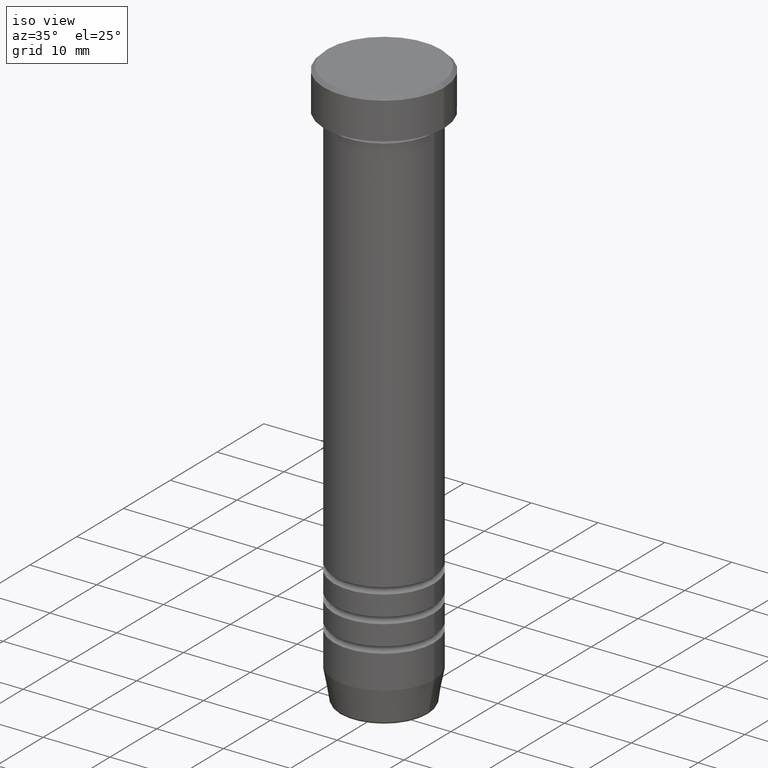
[diagram: clean part render]
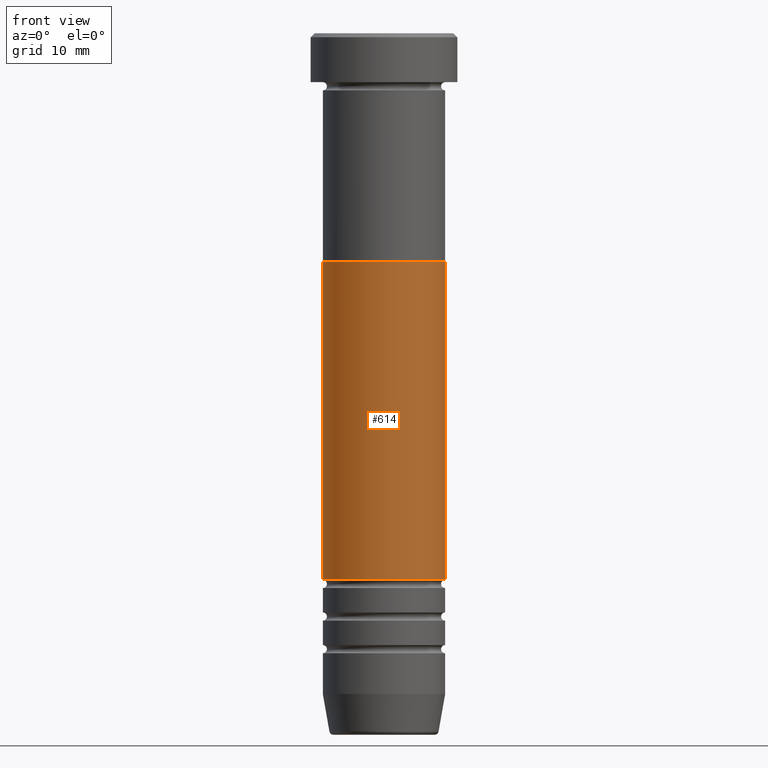
[diagram: tour spotlight — one face highlighted and labeled with its STEP entity id]
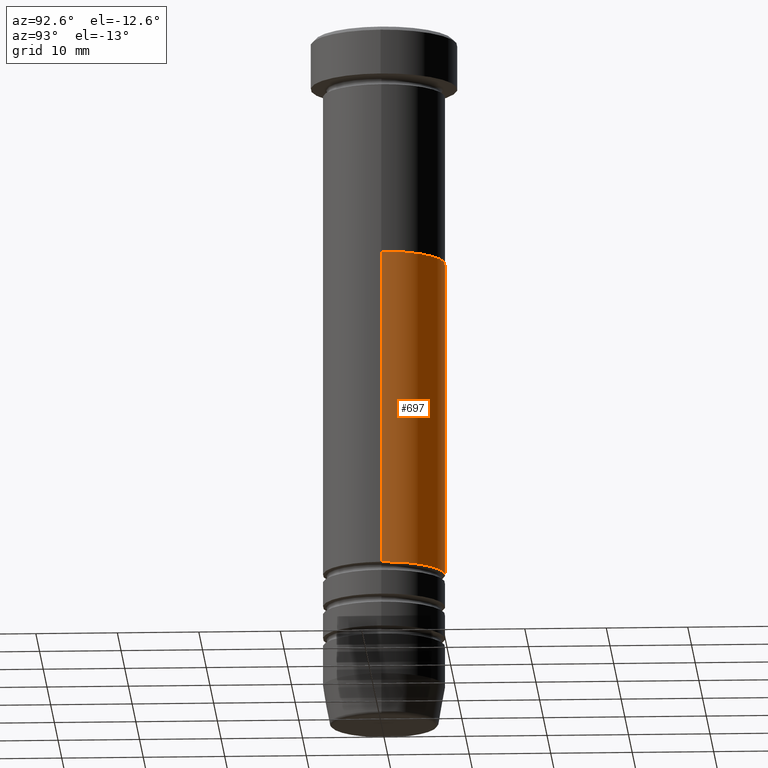
[diagram: tour spotlight — one face highlighted and labeled with its STEP entity id]
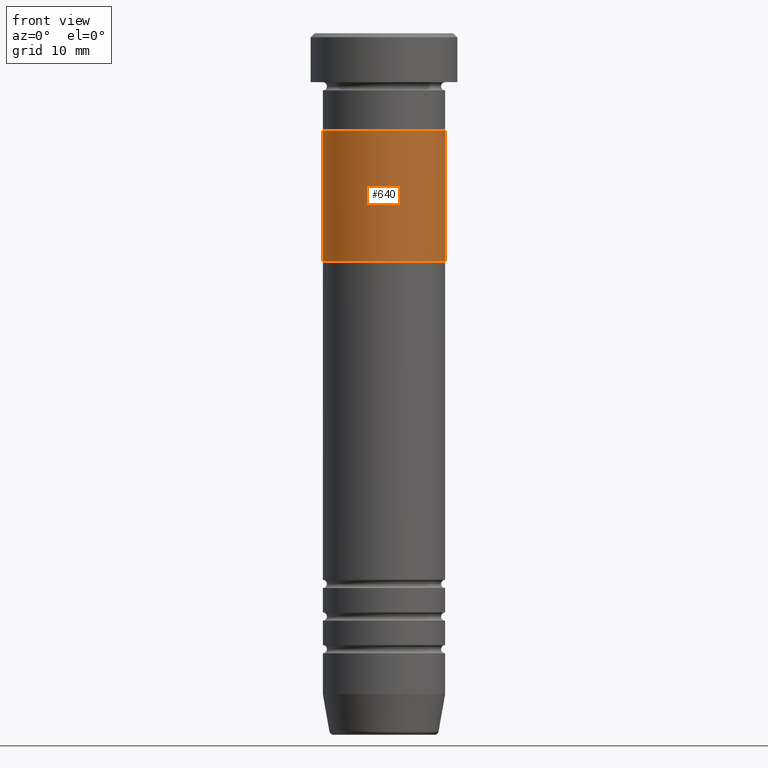
[diagram: tour spotlight — one face highlighted and labeled with its STEP entity id]
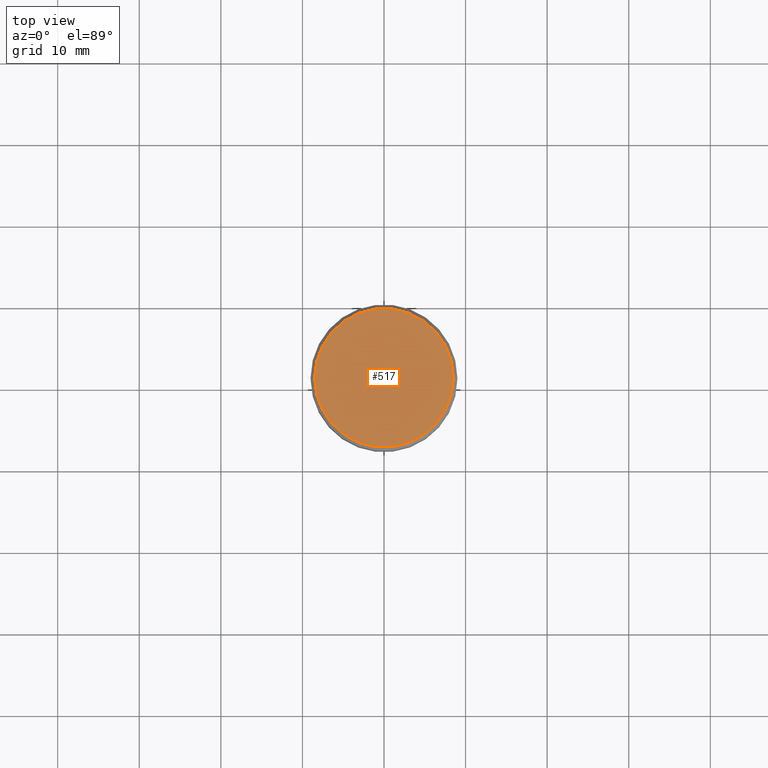
[diagram: tour spotlight — one face highlighted and labeled with its STEP entity id]
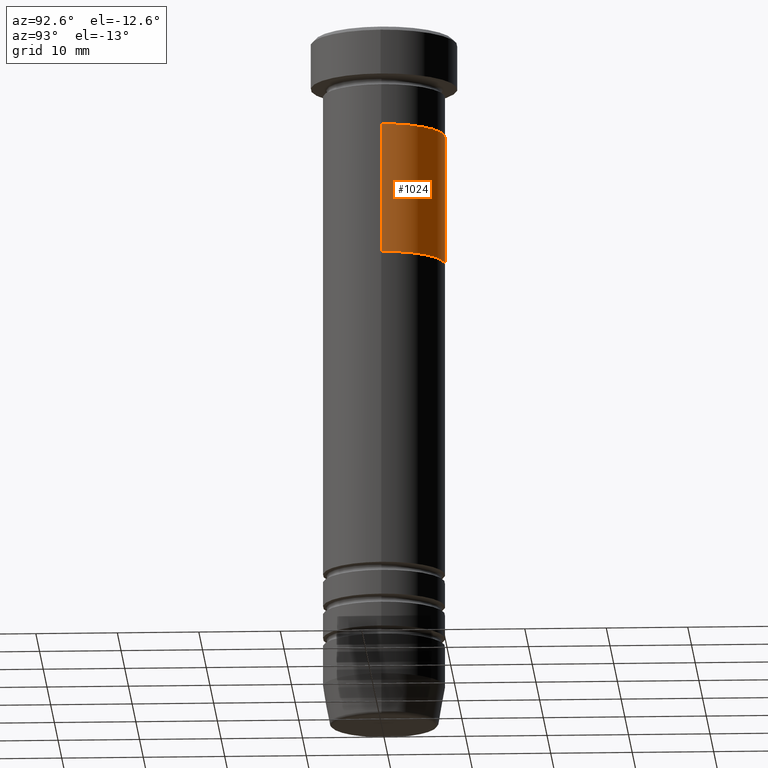
[diagram: tour spotlight — one face highlighted and labeled with its STEP entity id]
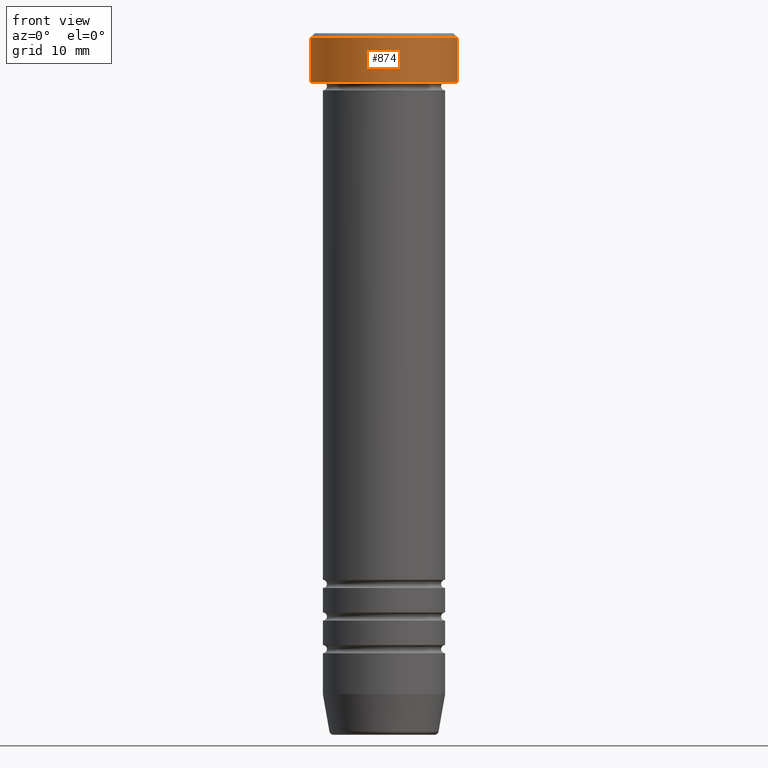
[diagram: tour spotlight — one face highlighted and labeled with its STEP entity id]
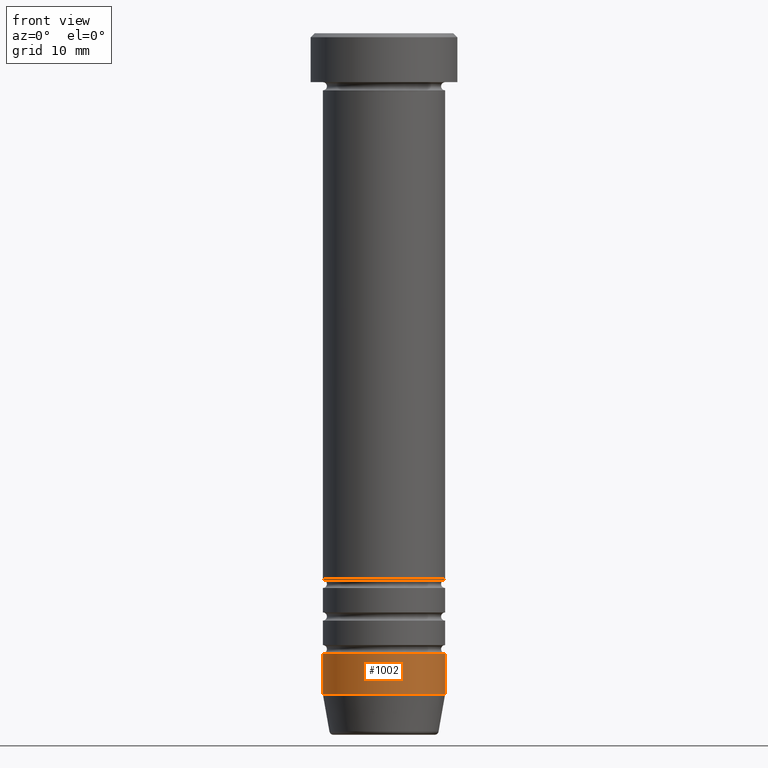
[diagram: tour spotlight — one face highlighted and labeled with its STEP entity id]
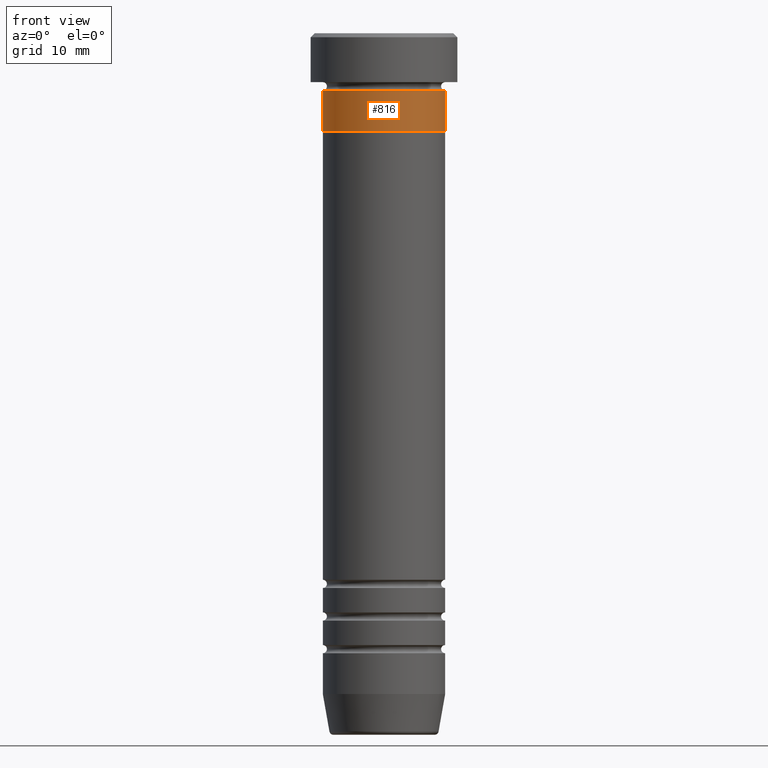
[diagram: tour spotlight — one face highlighted and labeled with its STEP entity id]
A machine part: a face-by-face anatomy tour. The part has 43 B-rep faces; the first image is the clean iso view, then the 8 largest visible faces are spotlighted one at a time (largest first), each with its STEP entity span.

Face 1 — front view, entity #614. In plain terms, the highlighted cylindrical surface (partial cylindrical patch) has radius 7.5 mm, axis along (-0, -0, 1).
Definition (entity closure, byte-faithful):
#41 = CARTESIAN_POINT ( 'NONE',  ( 7.500000000000000000, 0.000000000000000000, -28.00000000000000000 ) ) ;
#48 = CARTESIAN_POINT ( 'NONE',  ( -7.500000000000000888, 9.184850993605149917E-16, -28.00000000000000000 ) ) ;
#70 = LINE ( 'NONE', #526, #91 ) ;
#73 = DIRECTION ( 'NONE',  ( -0.000000000000000000, -0.000000000000000000, 1.000000000000000000 ) ) ;
#91 = VECTOR ( 'NONE', #1037, 1000.000000000000000 ) ;
#138 = DIRECTION ( 'NONE',  ( -0.000000000000000000, -0.000000000000000000, 1.000000000000000000 ) ) ;
#146 = CIRCLE ( 'NONE', #978, 7.499999999999991118 ) ;
#160 = FACE_OUTER_BOUND ( 'NONE', #989, .T. ) ;
#176 = DIRECTION ( 'NONE',  ( -0.000000000000000000, -0.000000000000000000, 1.000000000000000000 ) ) ;
#220 = CARTESIAN_POINT ( 'NONE',  ( 0.000000000000000000, 0.000000000000000000, -28.00000000000000000 ) ) ;
#292 = AXIS2_PLACEMENT_3D ( 'NONE', #220, #138, #566 ) ;
#299 = CARTESIAN_POINT ( 'NONE',  ( 7.499999999999995559, 0.000000000000000000, 0.000000000000000000 ) ) ;
#329 = CYLINDRICAL_SURFACE ( 'NONE', #1125, 7.499999999999995559 ) ;
#336 = ORIENTED_EDGE ( 'NONE', *, *, #543, .T. ) ;
#354 = VERTEX_POINT ( 'NONE', #48 ) ;
#394 = EDGE_CURVE ( 'NONE', #354, #852, #788, .T. ) ;
#432 = EDGE_CURVE ( 'NONE', #947, #852, #584, .T. ) ;
#514 = CARTESIAN_POINT ( 'NONE',  ( 0.000000000000000000, 0.000000000000000000, 0.000000000000000000 ) ) ;
#526 = CARTESIAN_POINT ( 'NONE',  ( -7.499999999999995559, 9.184850993605144000E-16, 0.000000000000000000 ) ) ;
#543 = EDGE_CURVE ( 'NONE', #915, #947, #146, .T. ) ;
#566 = DIRECTION ( 'NONE',  ( 1.000000000000000000, 0.000000000000000000, 0.000000000000000000 ) ) ;
#584 = LINE ( 'NONE', #299, #589 ) ;
#589 = VECTOR ( 'NONE', #1116, 1000.000000000000000 ) ;
#605 = CARTESIAN_POINT ( 'NONE',  ( 0.000000000000000000, 0.000000000000000000, -67.00000000000000000 ) ) ;
#614 = ADVANCED_FACE ( 'NONE', ( #160 ), #329, .T. ) ;
#629 = ORIENTED_EDGE ( 'NONE', *, *, #961, .F. ) ;
#786 = CARTESIAN_POINT ( 'NONE',  ( -7.499999999999991118, 9.184850993605142028E-16, -67.00000000000000000 ) ) ;
#788 = CIRCLE ( 'NONE', #292, 7.500000000000000000 ) ;
#800 = ORIENTED_EDGE ( 'NONE', *, *, #394, .F. ) ;
#852 = VERTEX_POINT ( 'NONE', #41 ) ;
#915 = VERTEX_POINT ( 'NONE', #786 ) ;
#947 = VERTEX_POINT ( 'NONE', #1124 ) ;
#961 = EDGE_CURVE ( 'NONE', #915, #354, #70, .T. ) ;
#978 = AXIS2_PLACEMENT_3D ( 'NONE', #605, #176, #1137 ) ;
#989 = EDGE_LOOP ( 'NONE', ( #629, #336, #1007, #800 ) ) ;
#1007 = ORIENTED_EDGE ( 'NONE', *, *, #432, .T. ) ;
#1035 = DIRECTION ( 'NONE',  ( 1.000000000000000000, 0.000000000000000000, 0.000000000000000000 ) ) ;
#1037 = DIRECTION ( 'NONE',  ( -0.000000000000000000, -0.000000000000000000, 1.000000000000000000 ) ) ;
#1116 = DIRECTION ( 'NONE',  ( -0.000000000000000000, -0.000000000000000000, 1.000000000000000000 ) ) ;
#1124 = CARTESIAN_POINT ( 'NONE',  ( 7.499999999999991118, 0.000000000000000000, -67.00000000000000000 ) ) ;
#1125 = AXIS2_PLACEMENT_3D ( 'NONE', #514, #73, #1035 ) ;
#1137 = DIRECTION ( 'NONE',  ( 1.000000000000000000, 0.000000000000000000, 0.000000000000000000 ) ) ;

Face 2 — auxiliary view, entity #697. In plain terms, the highlighted cylindrical surface (partial cylindrical patch) has radius 7.5 mm, axis along (-0, -0, 1).
Definition (entity closure, byte-faithful):
#41 = CARTESIAN_POINT ( 'NONE',  ( 7.500000000000000000, 0.000000000000000000, -28.00000000000000000 ) ) ;
#48 = CARTESIAN_POINT ( 'NONE',  ( -7.500000000000000888, 9.184850993605149917E-16, -28.00000000000000000 ) ) ;
#55 = CARTESIAN_POINT ( 'NONE',  ( 0.000000000000000000, 0.000000000000000000, -67.00000000000000000 ) ) ;
#70 = LINE ( 'NONE', #526, #91 ) ;
#91 = VECTOR ( 'NONE', #1037, 1000.000000000000000 ) ;
#113 = DIRECTION ( 'NONE',  ( -0.000000000000000000, -0.000000000000000000, 1.000000000000000000 ) ) ;
#199 = CYLINDRICAL_SURFACE ( 'NONE', #790, 7.499999999999995559 ) ;
#218 = DIRECTION ( 'NONE',  ( 1.000000000000000000, 0.000000000000000000, 0.000000000000000000 ) ) ;
#230 = DIRECTION ( 'NONE',  ( -0.000000000000000000, -0.000000000000000000, 1.000000000000000000 ) ) ;
#299 = CARTESIAN_POINT ( 'NONE',  ( 7.499999999999995559, 0.000000000000000000, 0.000000000000000000 ) ) ;
#354 = VERTEX_POINT ( 'NONE', #48 ) ;
#384 = AXIS2_PLACEMENT_3D ( 'NONE', #718, #986, #975 ) ;
#432 = EDGE_CURVE ( 'NONE', #947, #852, #584, .T. ) ;
#444 = FACE_OUTER_BOUND ( 'NONE', #1144, .T. ) ;
#502 = CIRCLE ( 'NONE', #384, 7.500000000000000000 ) ;
#526 = CARTESIAN_POINT ( 'NONE',  ( -7.499999999999995559, 9.184850993605144000E-16, 0.000000000000000000 ) ) ;
#555 = CARTESIAN_POINT ( 'NONE',  ( 0.000000000000000000, 0.000000000000000000, 0.000000000000000000 ) ) ;
#584 = LINE ( 'NONE', #299, #589 ) ;
#585 = ORIENTED_EDGE ( 'NONE', *, *, #432, .F. ) ;
#589 = VECTOR ( 'NONE', #1116, 1000.000000000000000 ) ;
#648 = EDGE_CURVE ( 'NONE', #852, #354, #502, .T. ) ;
#655 = ORIENTED_EDGE ( 'NONE', *, *, #839, .T. ) ;
#675 = ORIENTED_EDGE ( 'NONE', *, *, #648, .F. ) ;
#697 = ADVANCED_FACE ( 'NONE', ( #444 ), #199, .T. ) ;
#718 = CARTESIAN_POINT ( 'NONE',  ( 0.000000000000000000, 0.000000000000000000, -28.00000000000000000 ) ) ;
#773 = ORIENTED_EDGE ( 'NONE', *, *, #961, .T. ) ;
#786 = CARTESIAN_POINT ( 'NONE',  ( -7.499999999999991118, 9.184850993605142028E-16, -67.00000000000000000 ) ) ;
#790 = AXIS2_PLACEMENT_3D ( 'NONE', #555, #113, #999 ) ;
#839 = EDGE_CURVE ( 'NONE', #947, #915, #979, .T. ) ;
#852 = VERTEX_POINT ( 'NONE', #41 ) ;
#915 = VERTEX_POINT ( 'NONE', #786 ) ;
#947 = VERTEX_POINT ( 'NONE', #1124 ) ;
#961 = EDGE_CURVE ( 'NONE', #915, #354, #70, .T. ) ;
#975 = DIRECTION ( 'NONE',  ( 1.000000000000000000, 0.000000000000000000, 0.000000000000000000 ) ) ;
#979 = CIRCLE ( 'NONE', #1052, 7.499999999999991118 ) ;
#986 = DIRECTION ( 'NONE',  ( -0.000000000000000000, -0.000000000000000000, 1.000000000000000000 ) ) ;
#999 = DIRECTION ( 'NONE',  ( 1.000000000000000000, 0.000000000000000000, 0.000000000000000000 ) ) ;
#1037 = DIRECTION ( 'NONE',  ( -0.000000000000000000, -0.000000000000000000, 1.000000000000000000 ) ) ;
#1052 = AXIS2_PLACEMENT_3D ( 'NONE', #55, #230, #218 ) ;
#1116 = DIRECTION ( 'NONE',  ( -0.000000000000000000, -0.000000000000000000, 1.000000000000000000 ) ) ;
#1124 = CARTESIAN_POINT ( 'NONE',  ( 7.499999999999991118, 0.000000000000000000, -67.00000000000000000 ) ) ;
#1144 = EDGE_LOOP ( 'NONE', ( #655, #773, #675, #585 ) ) ;

Face 3 — front view, entity #640. In plain terms, the highlighted cylindrical surface (partial cylindrical patch) has radius 7.5 mm, axis along (-0, -0, 1).
Definition (entity closure, byte-faithful):
#4 = ORIENTED_EDGE ( 'NONE', *, *, #633, .F. ) ;
#17 = CARTESIAN_POINT ( 'NONE',  ( 0.000000000000000000, 0.000000000000000000, -28.00000000000000000 ) ) ;
#37 = DIRECTION ( 'NONE',  ( -0.000000000000000000, -0.000000000000000000, 1.000000000000000000 ) ) ;
#47 = LINE ( 'NONE', #234, #72 ) ;
#66 = EDGE_CURVE ( 'NONE', #684, #69, #695, .T. ) ;
#67 = CARTESIAN_POINT ( 'NONE',  ( -7.500000000000000000, 9.184850993605147944E-16, -12.00000000000000000 ) ) ;
#69 = VERTEX_POINT ( 'NONE', #67 ) ;
#72 = VECTOR ( 'NONE', #37, 1000.000000000000000 ) ;
#99 = DIRECTION ( 'NONE',  ( -0.000000000000000000, -0.000000000000000000, 1.000000000000000000 ) ) ;
#172 = ORIENTED_EDGE ( 'NONE', *, *, #1008, .T. ) ;
#177 = CARTESIAN_POINT ( 'NONE',  ( -7.500000000000000000, 9.184850993605147944E-16, -28.00000000000000000 ) ) ;
#193 = FACE_OUTER_BOUND ( 'NONE', #217, .T. ) ;
#217 = EDGE_LOOP ( 'NONE', ( #1120, #4, #251, #172 ) ) ;
#234 = CARTESIAN_POINT ( 'NONE',  ( 7.500000000000000000, 0.000000000000000000, -28.00000000000000000 ) ) ;
#251 = ORIENTED_EDGE ( 'NONE', *, *, #818, .T. ) ;
#263 = DIRECTION ( 'NONE',  ( -1.000000000000000000, 0.000000000000000000, 0.000000000000000000 ) ) ;
#283 = CARTESIAN_POINT ( 'NONE',  ( 0.000000000000000000, 0.000000000000000000, -12.00000000000000000 ) ) ;
#284 = DIRECTION ( 'NONE',  ( 1.000000000000000000, 0.000000000000000000, 0.000000000000000000 ) ) ;
#288 = VECTOR ( 'NONE', #524, 1000.000000000000000 ) ;
#428 = CARTESIAN_POINT ( 'NONE',  ( 0.000000000000000000, 0.000000000000000000, -28.00000000000000000 ) ) ;
#463 = DIRECTION ( 'NONE',  ( -1.000000000000000000, 0.000000000000000000, 0.000000000000000000 ) ) ;
#524 = DIRECTION ( 'NONE',  ( -0.000000000000000000, -0.000000000000000000, 1.000000000000000000 ) ) ;
#559 = CARTESIAN_POINT ( 'NONE',  ( 7.500000000000000000, 0.000000000000000000, -12.00000000000000000 ) ) ;
#577 = VERTEX_POINT ( 'NONE', #682 ) ;
#590 = AXIS2_PLACEMENT_3D ( 'NONE', #428, #722, #463 ) ;
#633 = EDGE_CURVE ( 'NONE', #577, #684, #922, .T. ) ;
#638 = CYLINDRICAL_SURFACE ( 'NONE', #995, 7.500000000000000000 ) ;
#640 = ADVANCED_FACE ( 'NONE', ( #193 ), #638, .T. ) ;
#662 = VERTEX_POINT ( 'NONE', #559 ) ;
#682 = CARTESIAN_POINT ( 'NONE',  ( 7.500000000000000000, 0.000000000000000000, -28.00000000000000000 ) ) ;
#684 = VERTEX_POINT ( 'NONE', #1147 ) ;
#695 = LINE ( 'NONE', #177, #288 ) ;
#722 = DIRECTION ( 'NONE',  ( 0.000000000000000000, 0.000000000000000000, -1.000000000000000000 ) ) ;
#809 = DIRECTION ( 'NONE',  ( 0.000000000000000000, 0.000000000000000000, -1.000000000000000000 ) ) ;
#818 = EDGE_CURVE ( 'NONE', #577, #662, #47, .T. ) ;
#922 = CIRCLE ( 'NONE', #590, 7.500000000000000000 ) ;
#944 = AXIS2_PLACEMENT_3D ( 'NONE', #283, #809, #263 ) ;
#995 = AXIS2_PLACEMENT_3D ( 'NONE', #17, #99, #284 ) ;
#1008 = EDGE_CURVE ( 'NONE', #662, #69, #1034, .T. ) ;
#1034 = CIRCLE ( 'NONE', #944, 7.500000000000000000 ) ;
#1120 = ORIENTED_EDGE ( 'NONE', *, *, #66, .F. ) ;
#1147 = CARTESIAN_POINT ( 'NONE',  ( -7.500000000000000000, 9.184850993605147944E-16, -28.00000000000000000 ) ) ;

Face 4 — top view, entity #517. In plain terms, the highlighted planar face has unit normal (0, -0, 1).
Definition (entity closure, byte-faithful):
#13 = CIRCLE ( 'NONE', #965, 8.500000000000000000 ) ;
#78 = DIRECTION ( 'NONE',  ( 1.000000000000000000, 0.000000000000000000, 0.000000000000000000 ) ) ;
#86 = DIRECTION ( 'NONE',  ( 1.000000000000000000, 0.000000000000000000, 0.000000000000000000 ) ) ;
#111 = DIRECTION ( 'NONE',  ( -0.000000000000000000, -0.000000000000000000, 1.000000000000000000 ) ) ;
#178 = CARTESIAN_POINT ( 'NONE',  ( 0.000000000000000000, 0.000000000000000000, 0.000000000000000000 ) ) ;
#216 = VERTEX_POINT ( 'NONE', #983 ) ;
#228 = CARTESIAN_POINT ( 'NONE',  ( -8.500000000000000000, 0.000000000000000000, 0.000000000000000000 ) ) ;
#387 = VERTEX_POINT ( 'NONE', #228 ) ;
#410 = EDGE_CURVE ( 'NONE', #216, #387, #938, .T. ) ;
#478 = ORIENTED_EDGE ( 'NONE', *, *, #1077, .T. ) ;
#510 = CARTESIAN_POINT ( 'NONE',  ( 0.000000000000000000, 0.000000000000000000, 0.000000000000000000 ) ) ;
#517 = ADVANCED_FACE ( 'NONE', ( #1133 ), #784, .T. ) ;
#572 = DIRECTION ( 'NONE',  ( -0.000000000000000000, -0.000000000000000000, 1.000000000000000000 ) ) ;
#613 = EDGE_LOOP ( 'NONE', ( #478, #762 ) ) ;
#616 = DIRECTION ( 'NONE',  ( 0.000000000000000000, -0.000000000000000000, 1.000000000000000000 ) ) ;
#668 = DIRECTION ( 'NONE',  ( 1.000000000000000000, 0.000000000000000000, 0.000000000000000000 ) ) ;
#696 = AXIS2_PLACEMENT_3D ( 'NONE', #510, #616, #78 ) ;
#762 = ORIENTED_EDGE ( 'NONE', *, *, #410, .T. ) ;
#784 = PLANE ( 'NONE',  #696 ) ;
#833 = CARTESIAN_POINT ( 'NONE',  ( 0.000000000000000000, 0.000000000000000000, 0.000000000000000000 ) ) ;
#938 = CIRCLE ( 'NONE', #1083, 8.500000000000000000 ) ;
#965 = AXIS2_PLACEMENT_3D ( 'NONE', #178, #111, #86 ) ;
#983 = CARTESIAN_POINT ( 'NONE',  ( 8.500000000000000000, 1.071565949253933927E-15, 0.000000000000000000 ) ) ;
#1077 = EDGE_CURVE ( 'NONE', #387, #216, #13, .T. ) ;
#1083 = AXIS2_PLACEMENT_3D ( 'NONE', #833, #572, #668 ) ;
#1133 = FACE_OUTER_BOUND ( 'NONE', #613, .T. ) ;

Face 5 — auxiliary view, entity #1024. In plain terms, the highlighted cylindrical surface (partial cylindrical patch) has radius 7.5 mm, axis along (-0, -0, 1).
Definition (entity closure, byte-faithful):
#10 = AXIS2_PLACEMENT_3D ( 'NONE', #764, #439, #1119 ) ;
#37 = DIRECTION ( 'NONE',  ( -0.000000000000000000, -0.000000000000000000, 1.000000000000000000 ) ) ;
#47 = LINE ( 'NONE', #234, #72 ) ;
#50 = EDGE_LOOP ( 'NONE', ( #265, #785, #440, #170 ) ) ;
#51 = CIRCLE ( 'NONE', #731, 7.500000000000000000 ) ;
#66 = EDGE_CURVE ( 'NONE', #684, #69, #695, .T. ) ;
#67 = CARTESIAN_POINT ( 'NONE',  ( -7.500000000000000000, 9.184850993605147944E-16, -12.00000000000000000 ) ) ;
#69 = VERTEX_POINT ( 'NONE', #67 ) ;
#72 = VECTOR ( 'NONE', #37, 1000.000000000000000 ) ;
#98 = CYLINDRICAL_SURFACE ( 'NONE', #241, 7.500000000000000000 ) ;
#170 = ORIENTED_EDGE ( 'NONE', *, *, #818, .F. ) ;
#177 = CARTESIAN_POINT ( 'NONE',  ( -7.500000000000000000, 9.184850993605147944E-16, -28.00000000000000000 ) ) ;
#207 = EDGE_CURVE ( 'NONE', #69, #662, #51, .T. ) ;
#234 = CARTESIAN_POINT ( 'NONE',  ( 7.500000000000000000, 0.000000000000000000, -28.00000000000000000 ) ) ;
#239 = CIRCLE ( 'NONE', #10, 7.500000000000000000 ) ;
#241 = AXIS2_PLACEMENT_3D ( 'NONE', #536, #714, #906 ) ;
#265 = ORIENTED_EDGE ( 'NONE', *, *, #601, .F. ) ;
#288 = VECTOR ( 'NONE', #524, 1000.000000000000000 ) ;
#439 = DIRECTION ( 'NONE',  ( 0.000000000000000000, 0.000000000000000000, -1.000000000000000000 ) ) ;
#440 = ORIENTED_EDGE ( 'NONE', *, *, #207, .T. ) ;
#524 = DIRECTION ( 'NONE',  ( -0.000000000000000000, -0.000000000000000000, 1.000000000000000000 ) ) ;
#536 = CARTESIAN_POINT ( 'NONE',  ( 0.000000000000000000, 0.000000000000000000, -28.00000000000000000 ) ) ;
#546 = FACE_OUTER_BOUND ( 'NONE', #50, .T. ) ;
#559 = CARTESIAN_POINT ( 'NONE',  ( 7.500000000000000000, 0.000000000000000000, -12.00000000000000000 ) ) ;
#577 = VERTEX_POINT ( 'NONE', #682 ) ;
#601 = EDGE_CURVE ( 'NONE', #684, #577, #239, .T. ) ;
#662 = VERTEX_POINT ( 'NONE', #559 ) ;
#682 = CARTESIAN_POINT ( 'NONE',  ( 7.500000000000000000, 0.000000000000000000, -28.00000000000000000 ) ) ;
#684 = VERTEX_POINT ( 'NONE', #1147 ) ;
#695 = LINE ( 'NONE', #177, #288 ) ;
#714 = DIRECTION ( 'NONE',  ( -0.000000000000000000, -0.000000000000000000, 1.000000000000000000 ) ) ;
#731 = AXIS2_PLACEMENT_3D ( 'NONE', #899, #813, #798 ) ;
#764 = CARTESIAN_POINT ( 'NONE',  ( 0.000000000000000000, 0.000000000000000000, -28.00000000000000000 ) ) ;
#785 = ORIENTED_EDGE ( 'NONE', *, *, #66, .T. ) ;
#798 = DIRECTION ( 'NONE',  ( -1.000000000000000000, 0.000000000000000000, 0.000000000000000000 ) ) ;
#813 = DIRECTION ( 'NONE',  ( 0.000000000000000000, 0.000000000000000000, -1.000000000000000000 ) ) ;
#818 = EDGE_CURVE ( 'NONE', #577, #662, #47, .T. ) ;
#899 = CARTESIAN_POINT ( 'NONE',  ( 0.000000000000000000, 0.000000000000000000, -12.00000000000000000 ) ) ;
#906 = DIRECTION ( 'NONE',  ( 1.000000000000000000, 0.000000000000000000, 0.000000000000000000 ) ) ;
#1024 = ADVANCED_FACE ( 'NONE', ( #546 ), #98, .T. ) ;
#1119 = DIRECTION ( 'NONE',  ( -1.000000000000000000, 0.000000000000000000, 0.000000000000000000 ) ) ;
#1147 = CARTESIAN_POINT ( 'NONE',  ( -7.500000000000000000, 9.184850993605147944E-16, -28.00000000000000000 ) ) ;

Face 6 — front view, entity #874. In plain terms, the highlighted cylindrical surface (partial cylindrical patch) has radius 9 mm, axis along (-0, -0, 1).
Definition (entity closure, byte-faithful):
#39 = CARTESIAN_POINT ( 'NONE',  ( -9.000000000000000000, 1.102182119232617714E-15, -0.5000000000000023315 ) ) ;
#40 = VERTEX_POINT ( 'NONE', #1057 ) ;
#60 = CYLINDRICAL_SURFACE ( 'NONE', #698, 9.000000000000000000 ) ;
#77 = DIRECTION ( 'NONE',  ( 0.000000000000000000, 0.000000000000000000, -1.000000000000000000 ) ) ;
#81 = ORIENTED_EDGE ( 'NONE', *, *, #925, .T. ) ;
#82 = DIRECTION ( 'NONE',  ( -0.000000000000000000, -0.000000000000000000, 1.000000000000000000 ) ) ;
#100 = LINE ( 'NONE', #620, #311 ) ;
#131 = EDGE_LOOP ( 'NONE', ( #398, #489, #345, #81 ) ) ;
#163 = VECTOR ( 'NONE', #195, 1000.000000000000000 ) ;
#173 = CARTESIAN_POINT ( 'NONE',  ( 0.000000000000000000, 0.000000000000000000, -0.5000000000000023315 ) ) ;
#188 = EDGE_CURVE ( 'NONE', #520, #414, #100, .T. ) ;
#195 = DIRECTION ( 'NONE',  ( -0.000000000000000000, -0.000000000000000000, 1.000000000000000000 ) ) ;
#208 = EDGE_CURVE ( 'NONE', #1073, #40, #824, .T. ) ;
#269 = DIRECTION ( 'NONE',  ( -0.000000000000000000, -0.000000000000000000, 1.000000000000000000 ) ) ;
#311 = VECTOR ( 'NONE', #269, 1000.000000000000000 ) ;
#328 = FACE_OUTER_BOUND ( 'NONE', #131, .T. ) ;
#345 = ORIENTED_EDGE ( 'NONE', *, *, #208, .T. ) ;
#386 = CIRCLE ( 'NONE', #810, 9.000000000000000000 ) ;
#398 = ORIENTED_EDGE ( 'NONE', *, *, #188, .F. ) ;
#414 = VERTEX_POINT ( 'NONE', #39 ) ;
#469 = CARTESIAN_POINT ( 'NONE',  ( 9.000000000000000000, 0.000000000000000000, -6.000000000000000000 ) ) ;
#489 = ORIENTED_EDGE ( 'NONE', *, *, #996, .T. ) ;
#503 = CIRCLE ( 'NONE', #924, 9.000000000000000000 ) ;
#513 = DIRECTION ( 'NONE',  ( 1.000000000000000000, 0.000000000000000000, 0.000000000000000000 ) ) ;
#520 = VERTEX_POINT ( 'NONE', #950 ) ;
#530 = DIRECTION ( 'NONE',  ( -0.000000000000000000, -0.000000000000000000, 1.000000000000000000 ) ) ;
#620 = CARTESIAN_POINT ( 'NONE',  ( -9.000000000000000000, 1.102182119232617714E-15, 0.000000000000000000 ) ) ;
#637 = DIRECTION ( 'NONE',  ( 1.000000000000000000, 0.000000000000000000, 0.000000000000000000 ) ) ;
#690 = CARTESIAN_POINT ( 'NONE',  ( 0.000000000000000000, 0.000000000000000000, -6.000000000000000000 ) ) ;
#698 = AXIS2_PLACEMENT_3D ( 'NONE', #1139, #82, #513 ) ;
#810 = AXIS2_PLACEMENT_3D ( 'NONE', #690, #530, #637 ) ;
#824 = LINE ( 'NONE', #988, #163 ) ;
#874 = ADVANCED_FACE ( 'NONE', ( #328 ), #60, .T. ) ;
#924 = AXIS2_PLACEMENT_3D ( 'NONE', #173, #77, #1048 ) ;
#925 = EDGE_CURVE ( 'NONE', #40, #414, #503, .T. ) ;
#950 = CARTESIAN_POINT ( 'NONE',  ( -9.000000000000000000, 1.102182119232617714E-15, -6.000000000000000000 ) ) ;
#988 = CARTESIAN_POINT ( 'NONE',  ( 9.000000000000000000, 0.000000000000000000, 0.000000000000000000 ) ) ;
#996 = EDGE_CURVE ( 'NONE', #520, #1073, #386, .T. ) ;
#1048 = DIRECTION ( 'NONE',  ( 1.000000000000000000, 0.000000000000000000, 0.000000000000000000 ) ) ;
#1057 = CARTESIAN_POINT ( 'NONE',  ( 9.000000000000000000, 0.000000000000000000, -0.5000000000000023315 ) ) ;
#1073 = VERTEX_POINT ( 'NONE', #469 ) ;
#1139 = CARTESIAN_POINT ( 'NONE',  ( 0.000000000000000000, 0.000000000000000000, 0.000000000000000000 ) ) ;

Face 7 — front view, entity #1002. In plain terms, the highlighted cylindrical surface (partial cylindrical patch) has radius 7.5 mm, axis along (-0, -0, 1).
Definition (entity closure, byte-faithful):
#87 = VECTOR ( 'NONE', #286, 1000.000000000000000 ) ;
#94 = FACE_OUTER_BOUND ( 'NONE', #305, .T. ) ;
#107 = LINE ( 'NONE', #466, #87 ) ;
#118 = ORIENTED_EDGE ( 'NONE', *, *, #248, .F. ) ;
#120 = CARTESIAN_POINT ( 'NONE',  ( 7.499999999999998224, 0.000000000000000000, -80.99999999999998579 ) ) ;
#142 = CARTESIAN_POINT ( 'NONE',  ( 0.000000000000000000, 0.000000000000000000, -75.99999999999998579 ) ) ;
#143 = DIRECTION ( 'NONE',  ( -0.000000000000000000, -0.000000000000000000, 1.000000000000000000 ) ) ;
#158 = VERTEX_POINT ( 'NONE', #120 ) ;
#229 = VERTEX_POINT ( 'NONE', #1061 ) ;
#248 = EDGE_CURVE ( 'NONE', #725, #229, #107, .T. ) ;
#286 = DIRECTION ( 'NONE',  ( -0.000000000000000000, -0.000000000000000000, 1.000000000000000000 ) ) ;
#305 = EDGE_LOOP ( 'NONE', ( #118, #1029, #919, #326 ) ) ;
#326 = ORIENTED_EDGE ( 'NONE', *, *, #867, .F. ) ;
#430 = EDGE_CURVE ( 'NONE', #158, #859, #741, .T. ) ;
#466 = CARTESIAN_POINT ( 'NONE',  ( -7.499999999999998224, 9.184850993605145972E-16, 0.000000000000000000 ) ) ;
#509 = DIRECTION ( 'NONE',  ( 1.000000000000000000, 0.000000000000000000, 0.000000000000000000 ) ) ;
#518 = CIRCLE ( 'NONE', #828, 7.499999999999998224 ) ;
#554 = CARTESIAN_POINT ( 'NONE',  ( 0.000000000000000000, 0.000000000000000000, 0.000000000000000000 ) ) ;
#556 = CIRCLE ( 'NONE', #774, 7.499999999999998224 ) ;
#619 = CARTESIAN_POINT ( 'NONE',  ( -7.499999999999998224, 9.184850993605145972E-16, -80.99999999999998579 ) ) ;
#658 = EDGE_CURVE ( 'NONE', #725, #158, #518, .T. ) ;
#680 = DIRECTION ( 'NONE',  ( -0.000000000000000000, -0.000000000000000000, 1.000000000000000000 ) ) ;
#708 = CARTESIAN_POINT ( 'NONE',  ( 0.000000000000000000, 0.000000000000000000, -80.99999999999998579 ) ) ;
#725 = VERTEX_POINT ( 'NONE', #619 ) ;
#741 = LINE ( 'NONE', #1089, #1014 ) ;
#753 = AXIS2_PLACEMENT_3D ( 'NONE', #554, #970, #793 ) ;
#774 = AXIS2_PLACEMENT_3D ( 'NONE', #142, #680, #509 ) ;
#793 = DIRECTION ( 'NONE',  ( 1.000000000000000000, 0.000000000000000000, 0.000000000000000000 ) ) ;
#828 = AXIS2_PLACEMENT_3D ( 'NONE', #708, #1063, #1075 ) ;
#859 = VERTEX_POINT ( 'NONE', #1098 ) ;
#867 = EDGE_CURVE ( 'NONE', #229, #859, #556, .T. ) ;
#919 = ORIENTED_EDGE ( 'NONE', *, *, #430, .T. ) ;
#970 = DIRECTION ( 'NONE',  ( -0.000000000000000000, -0.000000000000000000, 1.000000000000000000 ) ) ;
#1002 = ADVANCED_FACE ( 'NONE', ( #94 ), #1146, .T. ) ;
#1014 = VECTOR ( 'NONE', #143, 1000.000000000000000 ) ;
#1029 = ORIENTED_EDGE ( 'NONE', *, *, #658, .T. ) ;
#1061 = CARTESIAN_POINT ( 'NONE',  ( -7.499999999999998224, 9.184850993605145972E-16, -75.99999999999998579 ) ) ;
#1063 = DIRECTION ( 'NONE',  ( -0.000000000000000000, -0.000000000000000000, 1.000000000000000000 ) ) ;
#1075 = DIRECTION ( 'NONE',  ( 1.000000000000000000, 0.000000000000000000, 0.000000000000000000 ) ) ;
#1089 = CARTESIAN_POINT ( 'NONE',  ( 7.499999999999998224, 0.000000000000000000, 0.000000000000000000 ) ) ;
#1098 = CARTESIAN_POINT ( 'NONE',  ( 7.499999999999998224, 0.000000000000000000, -75.99999999999998579 ) ) ;
#1146 = CYLINDRICAL_SURFACE ( 'NONE', #753, 7.499999999999998224 ) ;

Face 8 — front view, entity #816. In plain terms, the highlighted cylindrical surface (partial cylindrical patch) has radius 7.5 mm, axis along (-0, -0, 1).
Definition (entity closure, byte-faithful):
#9 = DIRECTION ( 'NONE',  ( 1.000000000000000000, 0.000000000000000000, 0.000000000000000000 ) ) ;
#117 = EDGE_CURVE ( 'NONE', #250, #507, #350, .T. ) ;
#129 = AXIS2_PLACEMENT_3D ( 'NONE', #1004, #487, #934 ) ;
#132 = CYLINDRICAL_SURFACE ( 'NONE', #129, 7.500000000000000000 ) ;
#159 = LINE ( 'NONE', #415, #519 ) ;
#221 = AXIS2_PLACEMENT_3D ( 'NONE', #377, #1081, #9 ) ;
#244 = CARTESIAN_POINT ( 'NONE',  ( 7.500000000000000000, 0.000000000000000000, -6.999999999999999112 ) ) ;
#250 = VERTEX_POINT ( 'NONE', #452 ) ;
#258 = DIRECTION ( 'NONE',  ( -0.000000000000000000, -0.000000000000000000, 1.000000000000000000 ) ) ;
#297 = EDGE_CURVE ( 'NONE', #425, #768, #1064, .T. ) ;
#337 = LINE ( 'NONE', #505, #1107 ) ;
#344 = DIRECTION ( 'NONE',  ( 1.000000000000000000, 0.000000000000000000, 0.000000000000000000 ) ) ;
#350 = CIRCLE ( 'NONE', #621, 7.500000000000000000 ) ;
#377 = CARTESIAN_POINT ( 'NONE',  ( 0.000000000000000000, 0.000000000000000000, -12.00000000000000000 ) ) ;
#392 = CARTESIAN_POINT ( 'NONE',  ( -7.499999999999999112, 9.184850993605145972E-16, -12.00000000000000000 ) ) ;
#415 = CARTESIAN_POINT ( 'NONE',  ( -7.500000000000000000, 9.184850993605147944E-16, 0.000000000000000000 ) ) ;
#425 = VERTEX_POINT ( 'NONE', #392 ) ;
#446 = CARTESIAN_POINT ( 'NONE',  ( 0.000000000000000000, 0.000000000000000000, -6.999999999999999112 ) ) ;
#452 = CARTESIAN_POINT ( 'NONE',  ( -7.500000000000000000, 9.184850993605147944E-16, -6.999999999999999112 ) ) ;
#458 = ORIENTED_EDGE ( 'NONE', *, *, #117, .F. ) ;
#487 = DIRECTION ( 'NONE',  ( -0.000000000000000000, -0.000000000000000000, 1.000000000000000000 ) ) ;
#505 = CARTESIAN_POINT ( 'NONE',  ( 7.500000000000000000, 0.000000000000000000, 0.000000000000000000 ) ) ;
#507 = VERTEX_POINT ( 'NONE', #244 ) ;
#519 = VECTOR ( 'NONE', #258, 1000.000000000000000 ) ;
#521 = DIRECTION ( 'NONE',  ( -0.000000000000000000, -0.000000000000000000, 1.000000000000000000 ) ) ;
#562 = ORIENTED_EDGE ( 'NONE', *, *, #297, .T. ) ;
#578 = FACE_OUTER_BOUND ( 'NONE', #834, .T. ) ;
#621 = AXIS2_PLACEMENT_3D ( 'NONE', #446, #1134, #344 ) ;
#768 = VERTEX_POINT ( 'NONE', #1016 ) ;
#816 = ADVANCED_FACE ( 'NONE', ( #578 ), #132, .T. ) ;
#834 = EDGE_LOOP ( 'NONE', ( #1096, #562, #1138, #458 ) ) ;
#889 = EDGE_CURVE ( 'NONE', #425, #250, #159, .T. ) ;
#934 = DIRECTION ( 'NONE',  ( 1.000000000000000000, 0.000000000000000000, 0.000000000000000000 ) ) ;
#954 = EDGE_CURVE ( 'NONE', #768, #507, #337, .T. ) ;
#1004 = CARTESIAN_POINT ( 'NONE',  ( 0.000000000000000000, 0.000000000000000000, 0.000000000000000000 ) ) ;
#1016 = CARTESIAN_POINT ( 'NONE',  ( 7.499999999999999112, 0.000000000000000000, -12.00000000000000000 ) ) ;
#1064 = CIRCLE ( 'NONE', #221, 7.499999999999999112 ) ;
#1081 = DIRECTION ( 'NONE',  ( -0.000000000000000000, -0.000000000000000000, 1.000000000000000000 ) ) ;
#1096 = ORIENTED_EDGE ( 'NONE', *, *, #889, .F. ) ;
#1107 = VECTOR ( 'NONE', #521, 1000.000000000000000 ) ;
#1134 = DIRECTION ( 'NONE',  ( -0.000000000000000000, -0.000000000000000000, 1.000000000000000000 ) ) ;
#1138 = ORIENTED_EDGE ( 'NONE', *, *, #954, .T. ) ;